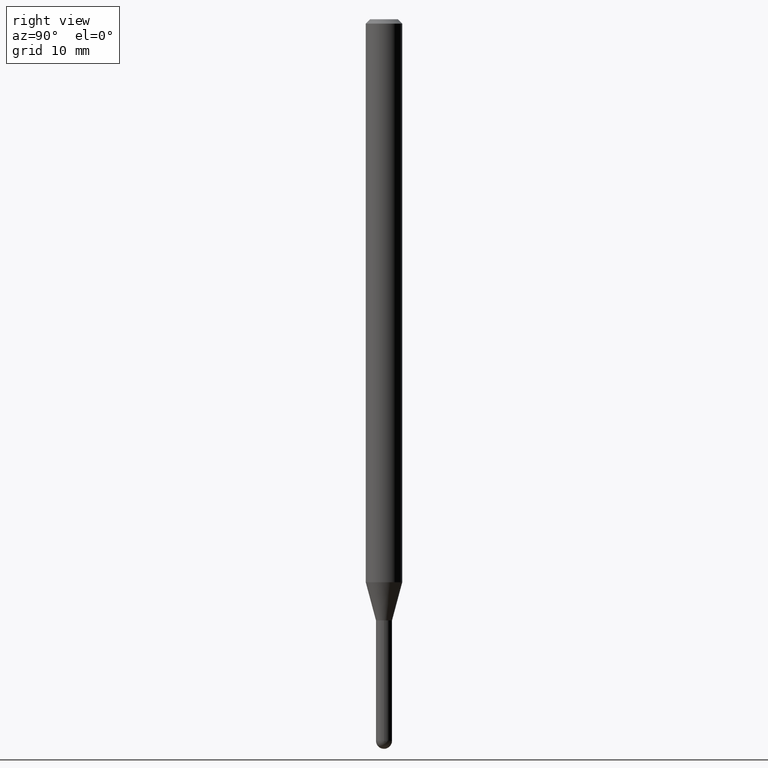
[diagram: clean part render]
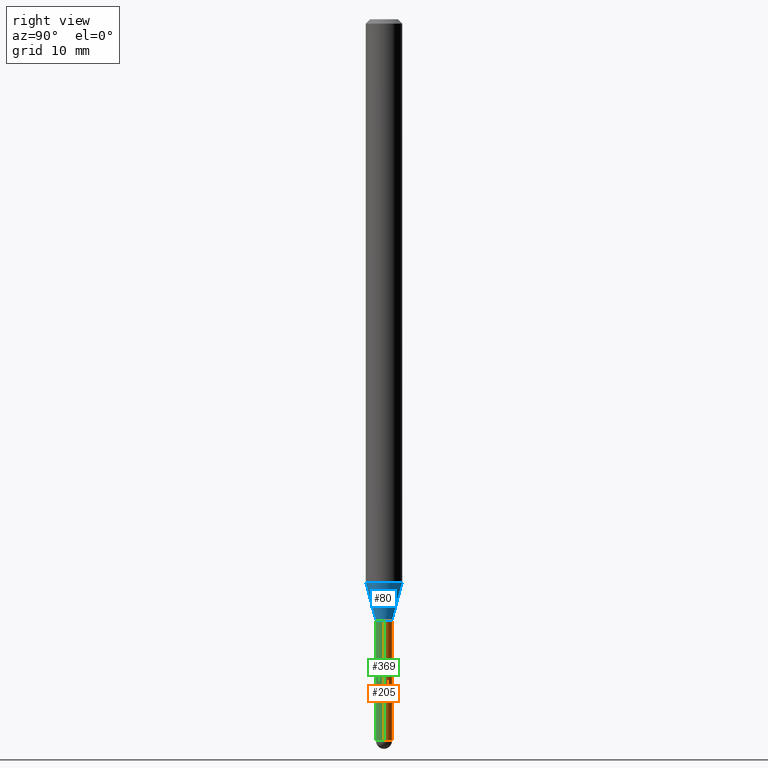
[diagram: same view with three faces highlighted in distinct colors, each labeled with its STEP entity id]
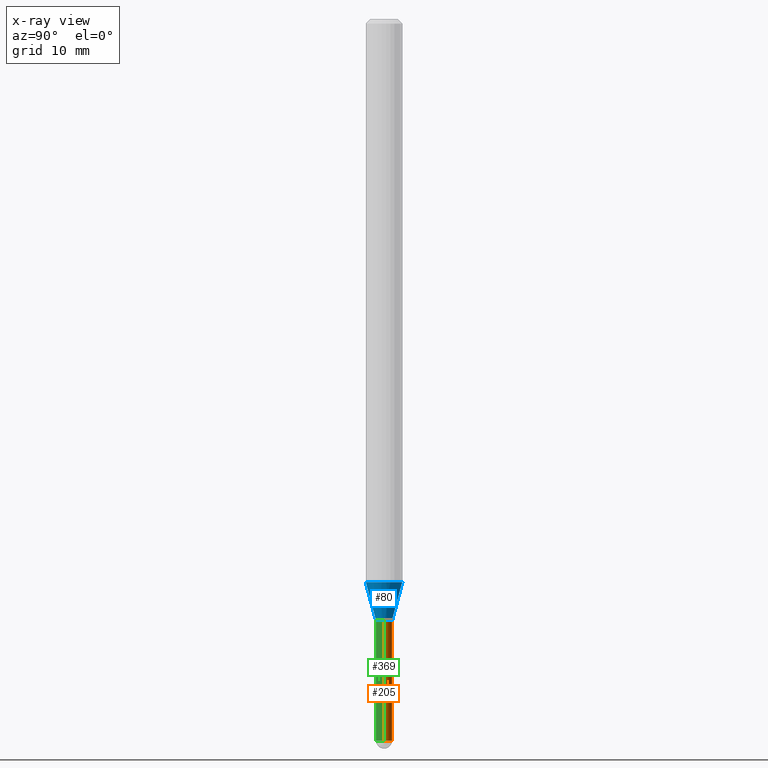
[diagram: x-ray of the same camera — body ghosted, the three highlighted faces saturated]
A machine part, right view with three faces highlighted in distinct colors.
The next image is the same camera in x-ray (body ghosted, the three faces saturated) — at least one of them is partly hidden behind the body in this view.
Their STEP definitions:

[orange] entity #205 — the highlighted cylindrical surface (edge-blend (fillet) strip) has radius 0.6985 mm, axis along (-0, 0, 1).
#17 = DIRECTION ( 'NONE',  ( 1.000000000000000000, -6.982962677686279332E-15, 0.000000000000000000 ) ) ;
#33 = DIRECTION ( 'NONE',  ( -2.445468806185136597E-29, 3.491481338843145583E-15, 1.000000000000000000 ) ) ;
#37 = EDGE_CURVE ( 'NONE', #150, #386, #72, .T. ) ;
#47 = VERTEX_POINT ( 'NONE', #361 ) ;
#58 = CIRCLE ( 'NONE', #69, 0.02750000000000000014 ) ;
#59 = CARTESIAN_POINT ( 'NONE',  ( -0.02750000000000000014, 1.953992523340275521E-16, -1.352707149820099181E-30 ) ) ;
#66 = DIRECTION ( 'NONE',  ( -2.445468806185136597E-29, 3.491481338843145583E-15, 1.000000000000000000 ) ) ;
#68 = DIRECTION ( 'NONE',  ( 1.000000000000000000, -6.982962677686279332E-15, 0.000000000000000000 ) ) ;
#69 = AXIS2_PLACEMENT_3D ( 'NONE', #438, #66, #17 ) ;
#72 = LINE ( 'NONE', #191, #347 ) ;
#74 = ORIENTED_EDGE ( 'NONE', *, *, #429, .T. ) ;
#111 = CARTESIAN_POINT ( 'NONE',  ( 1.920314736364331113E-16, 0.02749999999999141673, -2.472499999999999254 ) ) ;
#112 = VERTEX_POINT ( 'NONE', #111 ) ;
#117 = ORIENTED_EDGE ( 'NONE', *, *, #157, .T. ) ;
#150 = VERTEX_POINT ( 'NONE', #394 ) ;
#157 = EDGE_CURVE ( 'NONE', #150, #112, #58, .T. ) ;
#163 = CARTESIAN_POINT ( 'NONE',  ( 0.02750000000000000014, -7.384483031653253552E-15, -2.060000000000000053 ) ) ;
#172 = VERTEX_POINT ( 'NONE', #310 ) ;
#178 = EDGE_CURVE ( 'NONE', #386, #172, #328, .T. ) ;
#182 = FACE_OUTER_BOUND ( 'NONE', #294, .T. ) ;
#187 = DIRECTION ( 'NONE',  ( 1.000000000000000000, -6.982962677686266711E-15, 4.876176775795935793E-29 ) ) ;
#188 = ORIENTED_EDGE ( 'NONE', *, *, #178, .F. ) ;
#191 = CARTESIAN_POINT ( 'NONE',  ( 0.02750000000000000014, -1.920314736363723444E-16, 1.340948613343882413E-30 ) ) ;
#202 = DIRECTION ( 'NONE',  ( -2.445468806185136877E-29, 3.491481338843145188E-15, 1.000000000000000000 ) ) ;
#205 = ADVANCED_FACE ( 'NONE', ( #182 ), #473, .T. ) ;
#221 = CIRCLE ( 'NONE', #433, 0.02750000000000000014 ) ;
#291 = DIRECTION ( 'NONE',  ( 1.000000000000000000, -6.982962677686279332E-15, 0.000000000000000000 ) ) ;
#294 = EDGE_LOOP ( 'NONE', ( #479, #74, #188, #441, #117 ) ) ;
#300 = VECTOR ( 'NONE', #464, 39.37007874015748143 ) ;
#310 = CARTESIAN_POINT ( 'NONE',  ( -0.02750000000000000014, -7.717170331819249590E-15, -2.060000000000000053 ) ) ;
#328 = CIRCLE ( 'NONE', #366, 0.02750000000000000014 ) ;
#346 = DIRECTION ( 'NONE',  ( -2.445468806185136597E-29, 3.491481338843145583E-15, 1.000000000000000000 ) ) ;
#347 = VECTOR ( 'NONE', #202, 39.37007874015748143 ) ;
#361 = CARTESIAN_POINT ( 'NONE',  ( -0.02750000000000000014, -7.717170331819249590E-15, -2.472499999999999254 ) ) ;
#366 = AXIS2_PLACEMENT_3D ( 'NONE', #437, #346, #68 ) ;
#377 = CARTESIAN_POINT ( 'NONE',  ( 6.046421623292748621E-29, -8.632687610289675147E-15, -2.472499999999999254 ) ) ;
#386 = VERTEX_POINT ( 'NONE', #163 ) ;
#394 = CARTESIAN_POINT ( 'NONE',  ( 0.02750000000000000014, -8.104601057789650990E-15, -2.472499999999999254 ) ) ;
#400 = CARTESIAN_POINT ( 'NONE',  ( 0.000000000000000000, 0.000000000000000000, 0.000000000000000000 ) ) ;
#429 = EDGE_CURVE ( 'NONE', #47, #172, #462, .T. ) ;
#433 = AXIS2_PLACEMENT_3D ( 'NONE', #377, #492, #291 ) ;
#437 = CARTESIAN_POINT ( 'NONE',  ( 5.037665740741381905E-29, -7.192451558016880271E-15, -2.060000000000000053 ) ) ;
#438 = CARTESIAN_POINT ( 'NONE',  ( 6.046421623292748621E-29, -8.632687610289675147E-15, -2.472499999999999254 ) ) ;
#441 = ORIENTED_EDGE ( 'NONE', *, *, #37, .F. ) ;
#462 = LINE ( 'NONE', #59, #300 ) ;
#464 = DIRECTION ( 'NONE',  ( -2.445468806185136877E-29, 3.491481338843145188E-15, 1.000000000000000000 ) ) ;
#470 = AXIS2_PLACEMENT_3D ( 'NONE', #400, #33, #187 ) ;
#473 = CYLINDRICAL_SURFACE ( 'NONE', #470, 0.02750000000000000014 ) ;
#479 = ORIENTED_EDGE ( 'NONE', *, *, #498, .T. ) ;
#492 = DIRECTION ( 'NONE',  ( -2.445468806185136597E-29, 3.491481338843145583E-15, 1.000000000000000000 ) ) ;
#498 = EDGE_CURVE ( 'NONE', #112, #47, #221, .T. ) ;

[blue] entity #80 — the highlighted conical surface has half-angle 15 deg.
#16 = DIRECTION ( 'NONE',  ( 1.839019923739652775E-15, 0.2588190451025323413, 0.9659258262890650926 ) ) ;
#39 = CARTESIAN_POINT ( 'NONE',  ( 5.037641633608639187E-29, -7.192486080803059776E-15, -2.060000000000000053 ) ) ;
#42 = DIRECTION ( 'NONE',  ( -6.982962677686265922E-15, -1.000000000000000000, 0.000000000000000000 ) ) ;
#52 = LINE ( 'NONE', #207, #158 ) ;
#78 = AXIS2_PLACEMENT_3D ( 'NONE', #200, #370, #113 ) ;
#80 = ADVANCED_FACE ( 'NONE', ( #235 ), #382, .T. ) ;
#92 = DIRECTION ( 'NONE',  ( -6.982962677686265922E-15, -1.000000000000000000, 0.000000000000000000 ) ) ;
#107 = ORIENTED_EDGE ( 'NONE', *, *, #487, .F. ) ;
#109 = ORIENTED_EDGE ( 'NONE', *, *, #351, .T. ) ;
#113 = DIRECTION ( 'NONE',  ( -6.982962677686265922E-15, -1.000000000000000000, 4.370956789862821150E-15 ) ) ;
#128 = ORIENTED_EDGE ( 'NONE', *, *, #259, .F. ) ;
#132 = VERTEX_POINT ( 'NONE', #480 ) ;
#133 = LINE ( 'NONE', #208, #214 ) ;
#158 = VECTOR ( 'NONE', #16, 39.37007874015748143 ) ;
#169 = AXIS2_PLACEMENT_3D ( 'NONE', #39, #509, #42 ) ;
#189 = CIRCLE ( 'NONE', #78, 0.06250000000000000000 ) ;
#200 = CARTESIAN_POINT ( 'NONE',  ( 4.718211678053647219E-29, -6.736420390502052226E-15, -1.929378221735094545 ) ) ;
#207 = CARTESIAN_POINT ( 'NONE',  ( 1.953992523340792964E-16, 0.02749999999999300573, -2.060000000000000053 ) ) ;
#208 = CARTESIAN_POINT ( 'NONE',  ( -1.920314736363233118E-16, -0.02750000000000739006, -2.060000000000000053 ) ) ;
#214 = VECTOR ( 'NONE', #461, 39.37007874015748854 ) ;
#227 = AXIS2_PLACEMENT_3D ( 'NONE', #230, #289, #92 ) ;
#230 = CARTESIAN_POINT ( 'NONE',  ( 5.037641633608639187E-29, -7.192486080803059776E-15, -2.060000000000000053 ) ) ;
#235 = FACE_OUTER_BOUND ( 'NONE', #245, .T. ) ;
#245 = EDGE_LOOP ( 'NONE', ( #109, #248, #128, #107 ) ) ;
#248 = ORIENTED_EDGE ( 'NONE', *, *, #320, .T. ) ;
#259 = EDGE_CURVE ( 'NONE', #381, #356, #189, .T. ) ;
#289 = DIRECTION ( 'NONE',  ( -2.445457103693514043E-29, 3.491498097477213736E-15, 1.000000000000000000 ) ) ;
#320 = EDGE_CURVE ( 'NONE', #340, #356, #52, .T. ) ;
#333 = CARTESIAN_POINT ( 'NONE',  ( 3.197442310920946221E-16, 0.02749999999999300573, -2.060000000000000053 ) ) ;
#340 = VERTEX_POINT ( 'NONE', #333 ) ;
#351 = EDGE_CURVE ( 'NONE', #132, #340, #465, .T. ) ;
#353 = CARTESIAN_POINT ( 'NONE',  ( -4.364351673553446829E-16, -0.06250000000000677236, -1.929378221735094323 ) ) ;
#356 = VERTEX_POINT ( 'NONE', #398 ) ;
#370 = DIRECTION ( 'NONE',  ( -2.445457103693514043E-29, 3.491498097477213736E-15, 1.000000000000000000 ) ) ;
#381 = VERTEX_POINT ( 'NONE', #353 ) ;
#382 = CONICAL_SURFACE ( 'NONE', #169, 0.02750000000000019790, 0.2617993877991579010 ) ;
#398 = CARTESIAN_POINT ( 'NONE',  ( 4.440892098501095534E-16, 0.06249999999999324846, -1.929378221735094767 ) ) ;
#461 = DIRECTION ( 'NONE',  ( -1.807323732225381810E-15, -0.2588190451025255689, 0.9659258262890669799 ) ) ;
#465 = CIRCLE ( 'NONE', #227, 0.02750000000000019790 ) ;
#480 = CARTESIAN_POINT ( 'NONE',  ( -1.920314736363233118E-16, -0.02750000000000739006, -2.060000000000000053 ) ) ;
#487 = EDGE_CURVE ( 'NONE', #132, #381, #133, .T. ) ;
#509 = DIRECTION ( 'NONE',  ( -2.445457103693514043E-29, 3.491498097477213736E-15, 1.000000000000000000 ) ) ;

[green] entity #369 — the highlighted cylindrical surface (edge-blend (fillet) strip) has radius 0.6985 mm, axis along (-0, 0, 1).
#4 = AXIS2_PLACEMENT_3D ( 'NONE', #282, #13, #350 ) ;
#13 = DIRECTION ( 'NONE',  ( -2.445468806185136597E-29, 3.491481338843145583E-15, 1.000000000000000000 ) ) ;
#20 = CARTESIAN_POINT ( 'NONE',  ( -1.953992523339674261E-16, -0.02750000000000868070, -2.472499999999999254 ) ) ;
#28 = CYLINDRICAL_SURFACE ( 'NONE', #4, 0.02750000000000000014 ) ;
#37 = EDGE_CURVE ( 'NONE', #150, #386, #72, .T. ) ;
#47 = VERTEX_POINT ( 'NONE', #361 ) ;
#59 = CARTESIAN_POINT ( 'NONE',  ( -0.02750000000000000014, 1.953992523340275521E-16, -1.352707149820099181E-30 ) ) ;
#72 = LINE ( 'NONE', #191, #347 ) ;
#73 = CARTESIAN_POINT ( 'NONE',  ( 6.046421623292748621E-29, -8.632687610289675147E-15, -2.472499999999999254 ) ) ;
#94 = ORIENTED_EDGE ( 'NONE', *, *, #506, .T. ) ;
#96 = CIRCLE ( 'NONE', #494, 0.02750000000000000014 ) ;
#110 = ORIENTED_EDGE ( 'NONE', *, *, #265, .F. ) ;
#114 = DIRECTION ( 'NONE',  ( -2.445468806185136597E-29, 3.491481338843145583E-15, 1.000000000000000000 ) ) ;
#129 = CIRCLE ( 'NONE', #500, 0.02750000000000000014 ) ;
#137 = EDGE_CURVE ( 'NONE', #47, #426, #129, .T. ) ;
#143 = CARTESIAN_POINT ( 'NONE',  ( 6.046421623292748621E-29, -8.632687610289675147E-15, -2.472499999999999254 ) ) ;
#150 = VERTEX_POINT ( 'NONE', #394 ) ;
#163 = CARTESIAN_POINT ( 'NONE',  ( 0.02750000000000000014, -7.384483031653253552E-15, -2.060000000000000053 ) ) ;
#165 = CARTESIAN_POINT ( 'NONE',  ( 5.037665740741381905E-29, -7.192451558016880271E-15, -2.060000000000000053 ) ) ;
#172 = VERTEX_POINT ( 'NONE', #310 ) ;
#179 = DIRECTION ( 'NONE',  ( 1.000000000000000000, -6.982962677686279332E-15, 0.000000000000000000 ) ) ;
#191 = CARTESIAN_POINT ( 'NONE',  ( 0.02750000000000000014, -1.920314736363723444E-16, 1.340948613343882413E-30 ) ) ;
#202 = DIRECTION ( 'NONE',  ( -2.445468806185136877E-29, 3.491481338843145188E-15, 1.000000000000000000 ) ) ;
#228 = AXIS2_PLACEMENT_3D ( 'NONE', #143, #436, #179 ) ;
#238 = EDGE_LOOP ( 'NONE', ( #430, #329, #94, #255, #110 ) ) ;
#241 = CIRCLE ( 'NONE', #228, 0.02750000000000000014 ) ;
#255 = ORIENTED_EDGE ( 'NONE', *, *, #37, .T. ) ;
#265 = EDGE_CURVE ( 'NONE', #172, #386, #96, .T. ) ;
#279 = DIRECTION ( 'NONE',  ( 1.000000000000000000, -6.982962677686279332E-15, 0.000000000000000000 ) ) ;
#282 = CARTESIAN_POINT ( 'NONE',  ( 0.000000000000000000, 0.000000000000000000, 0.000000000000000000 ) ) ;
#300 = VECTOR ( 'NONE', #464, 39.37007874015748143 ) ;
#310 = CARTESIAN_POINT ( 'NONE',  ( -0.02750000000000000014, -7.717170331819249590E-15, -2.060000000000000053 ) ) ;
#329 = ORIENTED_EDGE ( 'NONE', *, *, #137, .T. ) ;
#332 = DIRECTION ( 'NONE',  ( -2.445468806185136597E-29, 3.491481338843145583E-15, 1.000000000000000000 ) ) ;
#347 = VECTOR ( 'NONE', #202, 39.37007874015748143 ) ;
#350 = DIRECTION ( 'NONE',  ( 1.000000000000000000, -6.982962677686266711E-15, 4.876176775795935793E-29 ) ) ;
#360 = DIRECTION ( 'NONE',  ( 1.000000000000000000, -6.982962677686279332E-15, 0.000000000000000000 ) ) ;
#361 = CARTESIAN_POINT ( 'NONE',  ( -0.02750000000000000014, -7.717170331819249590E-15, -2.472499999999999254 ) ) ;
#369 = ADVANCED_FACE ( 'NONE', ( #393 ), #28, .T. ) ;
#386 = VERTEX_POINT ( 'NONE', #163 ) ;
#393 = FACE_OUTER_BOUND ( 'NONE', #238, .T. ) ;
#394 = CARTESIAN_POINT ( 'NONE',  ( 0.02750000000000000014, -8.104601057789650990E-15, -2.472499999999999254 ) ) ;
#426 = VERTEX_POINT ( 'NONE', #20 ) ;
#429 = EDGE_CURVE ( 'NONE', #47, #172, #462, .T. ) ;
#430 = ORIENTED_EDGE ( 'NONE', *, *, #429, .F. ) ;
#436 = DIRECTION ( 'NONE',  ( -2.445468806185136597E-29, 3.491481338843145583E-15, 1.000000000000000000 ) ) ;
#462 = LINE ( 'NONE', #59, #300 ) ;
#464 = DIRECTION ( 'NONE',  ( -2.445468806185136877E-29, 3.491481338843145188E-15, 1.000000000000000000 ) ) ;
#494 = AXIS2_PLACEMENT_3D ( 'NONE', #165, #332, #360 ) ;
#500 = AXIS2_PLACEMENT_3D ( 'NONE', #73, #114, #279 ) ;
#506 = EDGE_CURVE ( 'NONE', #426, #150, #241, .T. ) ;